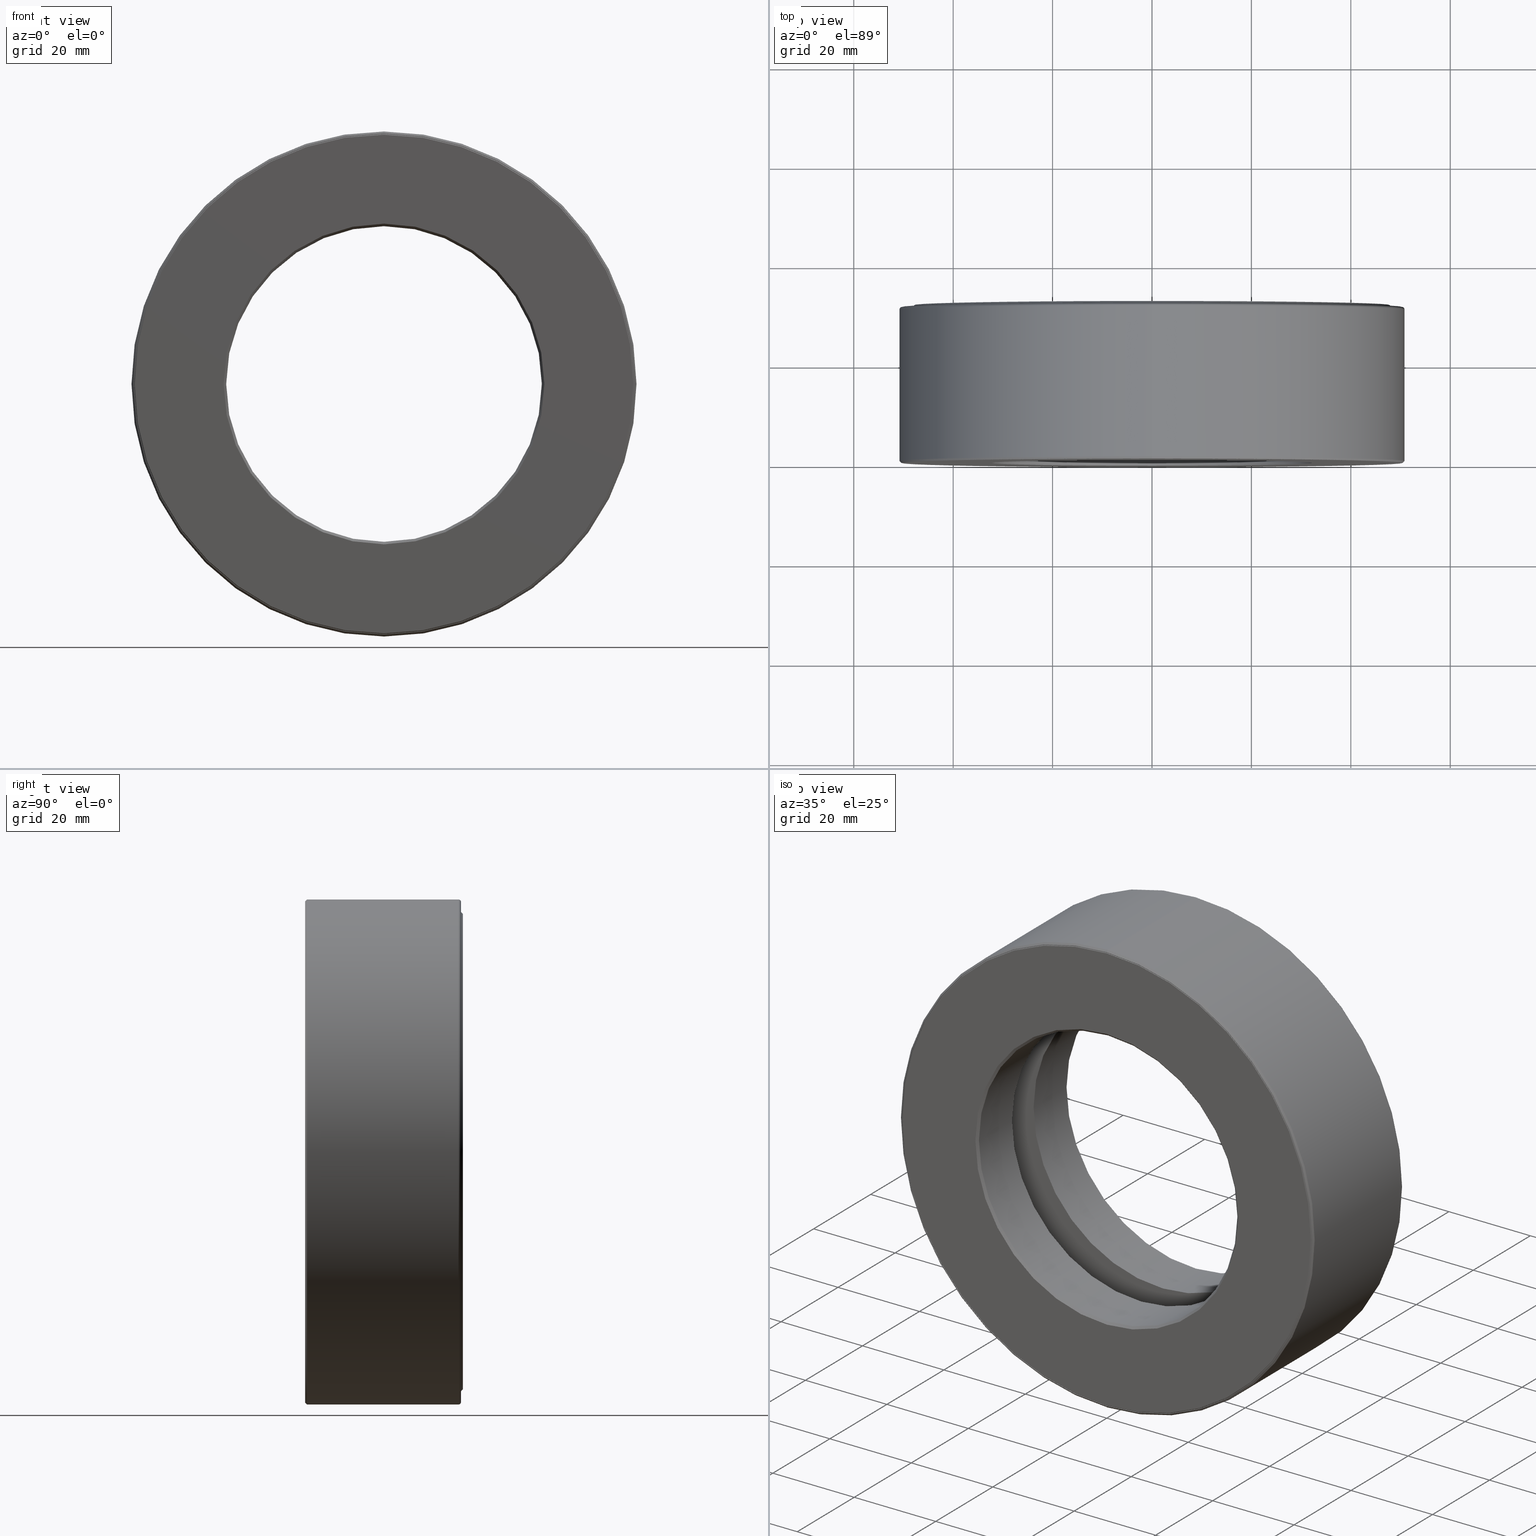
[diagram: canonical four-view strip — front | top / right | iso, engineering-drawing reading convention]
A machine part, canonical four-view strip (front | top / right | iso — engineering-drawing reading convention). The complete STEP part file that produces these views, byte-faithful:
ISO-10303-21;
HEADER;
FILE_DESCRIPTION (( 'STEP AP203' ),
    '1' );
FILE_NAME ('T-100-42.step',
    '2016-06-29T18:27:37',
    ( '' ),
    ( '' ),
    'SwSTEP 2.0',
    'SolidWorks 2016',
    '' );
FILE_SCHEMA (( 'CONFIG_CONTROL_DESIGN' ));
ENDSEC;

DATA;
#1 = FACE_OUTER_BOUND ( 'NONE', #216, .T. ) ;
#2 = AXIS2_PLACEMENT_3D ( 'NONE', #421, #27, #157 ) ;
#3 = EDGE_LOOP ( 'NONE', ( #43 ) ) ;
#4 = ORIENTED_EDGE ( 'NONE', *, *, #512, .T. ) ;
#5 = CONICAL_SURFACE ( 'NONE', #203, 1.884999999999999300, 0.7853981633974482800 ) ;
#6 = CONICAL_SURFACE ( 'NONE', #292, 1.250000000000000000, 0.7853981633974449500 ) ;
#7 = EDGE_LOOP ( 'NONE', ( #379 ) ) ;
#8 = AXIS2_PLACEMENT_3D ( 'NONE', #78, #262, #40 ) ;
#9 = DIRECTION ( 'NONE',  ( -0.0000000000000000000, 1.000000000000000000, -0.0000000000000000000 ) ) ;
#10 = SPHERICAL_SURFACE ( 'NONE', #54, 0.2500000000000000600 ) ;
#11 = EDGE_LOOP ( 'NONE', ( #188 ) ) ;
#12 = DIRECTION ( 'NONE',  ( 0.0000000000000000000, 0.0000000000000000000, 1.000000000000000000 ) ) ;
#13 = EDGE_LOOP ( 'NONE', ( #271 ) ) ;
#14 = DIRECTION ( 'NONE',  ( -0.0000000000000000000, 1.000000000000000000, -0.0000000000000000000 ) ) ;
#15 = EDGE_CURVE ( 'NONE', #489, #489, #529, .T. ) ;
#16 = PLANE ( 'NONE',  #145 ) ;
#17 = MANIFOLD_SOLID_BREP ( 'Revolve2[1]', #155 ) ;
#18 = CARTESIAN_POINT ( 'NONE',  ( 0.0000000000000000000, 1.234999999999999900, 0.0000000000000000000 ) ) ;
#19 = CARTESIAN_POINT ( 'NONE',  ( 0.0000000000000000000, 0.4749999999999999800, 0.0000000000000000000 ) ) ;
#20 = CARTESIAN_POINT ( 'NONE',  ( 4.083987789886093600E-034, -1.189847856615489700E-016, 0.0000000000000000000 ) ) ;
#21 = CIRCLE ( 'NONE', #586, 1.979999999999999500 ) ;
#22 = DIRECTION ( 'NONE',  ( 0.0000000000000000000, 0.0000000000000000000, 1.000000000000000000 ) ) ;
#23 = CIRCLE ( 'NONE', #336, 1.250000000000000000 ) ;
#24 = DIRECTION ( 'NONE',  ( -0.0000000000000000000, 1.000000000000000000, 0.0000000000000000000 ) ) ;
#25 = APPROVAL_ROLE ( '' ) ;
#26 = AXIS2_PLACEMENT_3D ( 'NONE', #296, #31, #477 ) ;
#27 = DIRECTION ( 'NONE',  ( -0.0000000000000000000, 1.000000000000000000, -0.0000000000000000000 ) ) ;
#28 = CARTESIAN_POINT ( 'NONE',  ( 0.0000000000000000000, 0.4749999999999999200, 1.920999999999999800 ) ) ;
#29 = PLANE ( 'NONE',  #559 ) ;
#30 =( CONVERSION_BASED_UNIT ( 'INCH', #453 ) LENGTH_UNIT ( ) NAMED_UNIT ( #158 ) );
#31 = DIRECTION ( 'NONE',  ( -0.0000000000000000000, 1.000000000000000000, -0.0000000000000000000 ) ) ;
#32 = ADVANCED_FACE ( 'NONE', ( #56, #539 ), #175, .F. ) ;
#33 = FACE_OUTER_BOUND ( 'NONE', #348, .T. ) ;
#34 = CARTESIAN_POINT ( 'NONE',  ( 0.0000000000000000000, 0.0000000000000000000, 0.0000000000000000000 ) ) ;
#35 = DATE_TIME_ROLE ( 'classification_date' ) ;
#36 = CARTESIAN_POINT ( 'NONE',  ( 0.0000000000000000000, 0.0000000000000000000, 0.0000000000000000000 ) ) ;
#37 = ORIENTED_EDGE ( 'NONE', *, *, #302, .F. ) ;
#38 = EDGE_LOOP ( 'NONE', ( #353 ) ) ;
#39 = DIRECTION ( 'NONE',  ( 0.0000000000000000000, -1.000000000000000000, 0.0000000000000000000 ) ) ;
#40 = DIRECTION ( 'NONE',  ( 0.0000000000000000000, 0.0000000000000000000, 1.000000000000000000 ) ) ;
#41 = SPHERICAL_SURFACE ( 'NONE', #521, 0.2500000000000000600 ) ;
#42 = EDGE_LOOP ( 'NONE', ( #52 ) ) ;
#43 = ORIENTED_EDGE ( 'NONE', *, *, #409, .T. ) ;
#44 = DIRECTION ( 'NONE',  ( 0.0000000000000000000, 0.0000000000000000000, 1.000000000000000000 ) ) ;
#45 = AXIS2_PLACEMENT_3D ( 'NONE', #233, #9, #461 ) ;
#46 = AXIS2_PLACEMENT_3D ( 'NONE', #36, #349, #82 ) ;
#47 = VERTEX_POINT ( 'NONE', #125 ) ;
#48 = CIRCLE ( 'NONE', #601, 1.884999999999999300 ) ;
#49 = EDGE_LOOP ( 'NONE', ( #169 ) ) ;
#50 = AXIS2_PLACEMENT_3D ( 'NONE', #334, #192, #57 ) ;
#51 = VERTEX_POINT ( 'NONE', #73 ) ;
#52 = ORIENTED_EDGE ( 'NONE', *, *, #362, .T. ) ;
#53 = LOCAL_TIME ( 14, 27, 37.00000000000000000, #327 ) ;
#54 = AXIS2_PLACEMENT_3D ( 'NONE', #538, #44, #351 ) ;
#55 = FACE_OUTER_BOUND ( 'NONE', #491, .T. ) ;
#56 = FACE_OUTER_BOUND ( 'NONE', #237, .T. ) ;
#57 = DIRECTION ( 'NONE',  ( 0.0000000000000000000, 0.0000000000000000000, 1.000000000000000000 ) ) ;
#58 = PERSON_AND_ORGANIZATION ( #131, #359 ) ;
#59 = CARTESIAN_POINT ( 'NONE',  ( 0.0000000000000000000, -1.024442997624098700E-016, 0.0000000000000000000 ) ) ;
#60 = DIRECTION ( 'NONE',  ( -0.0000000000000000000, 1.000000000000000000, -0.0000000000000000000 ) ) ;
#61 = CARTESIAN_POINT ( 'NONE',  ( 0.0000000000000000000, 1.234999999999999900, 0.0000000000000000000 ) ) ;
#62 = ORIENTED_EDGE ( 'NONE', *, *, #229, .F. ) ;
#63 = DIRECTION ( 'NONE',  ( 0.0000000000000000000, 0.0000000000000000000, 1.000000000000000000 ) ) ;
#64 = CARTESIAN_POINT ( 'NONE',  ( 0.0000000000000000000, -1.365923996832131600E-016, 0.0000000000000000000 ) ) ;
#65 = CLOSED_SHELL ( 'NONE', ( #434 ) ) ;
#66 = DIRECTION ( 'NONE',  ( -0.0000000000000000000, 1.000000000000000000, -0.0000000000000000000 ) ) ;
#67 = DIRECTION ( 'NONE',  ( 0.0000000000000000000, -1.000000000000000000, 0.0000000000000000000 ) ) ;
#68 = COORDINATED_UNIVERSAL_TIME_OFFSET ( 5, 0, .BEHIND. ) ;
#69 = DIRECTION ( 'NONE',  ( 1.000000000000000000, 0.0000000000000000000, 0.0000000000000000000 ) ) ;
#70 = CIRCLE ( 'NONE', #232, 1.250000000000000000 ) ;
#71 = FACE_OUTER_BOUND ( 'NONE', #381, .T. ) ;
#72 = EDGE_LOOP ( 'NONE', ( #224 ) ) ;
#73 = CARTESIAN_POINT ( 'NONE',  ( 0.0000000000000000000, 1.250000000000000200, 1.270000000000000500 ) ) ;
#74 = AXIS2_PLACEMENT_3D ( 'NONE', #418, #558, #273 ) ;
#75 = CARTESIAN_POINT ( 'NONE',  ( 0.0000000000000000000, 0.7749999999999998000, 1.250000000000000000 ) ) ;
#76 = DIRECTION ( 'NONE',  ( 0.0000000000000000000, 0.0000000000000000000, 1.000000000000000000 ) ) ;
#77 = ADVANCED_FACE ( 'NONE', ( #244, #371 ), #311, .F. ) ;
#78 = CARTESIAN_POINT ( 'NONE',  ( 0.0000000000000000000, -1.022578958537098800E-016, 0.0000000000000000000 ) ) ;
#79 = PRODUCT_RELATED_PRODUCT_CATEGORY ( 'detail', '', ( #540 ) ) ;
#80 = EDGE_CURVE ( 'NONE', #443, #443, #346, .T. ) ;
#81 = FACE_OUTER_BOUND ( 'NONE', #99, .T. ) ;
#82 = DIRECTION ( 'NONE',  ( 0.0000000000000000000, 0.0000000000000000000, 1.000000000000000000 ) ) ;
#83 = ORIENTED_EDGE ( 'NONE', *, *, #95, .F. ) ;
#84 = EDGE_LOOP ( 'NONE', ( #437 ) ) ;
#85 = DIRECTION ( 'NONE',  ( -0.0000000000000000000, 1.000000000000000000, -0.0000000000000000000 ) ) ;
#86 = COORDINATED_UNIVERSAL_TIME_OFFSET ( 5, 0, .BEHIND. ) ;
#87 = DIRECTION ( 'NONE',  ( -0.0000000000000000000, 1.000000000000000000, -0.0000000000000000000 ) ) ;
#88 = AXIS2_PLACEMENT_3D ( 'NONE', #179, #221, #542 ) ;
#89 = DIRECTION ( 'NONE',  ( 0.0000000000000000000, 0.0000000000000000000, 1.000000000000000000 ) ) ;
#90 = VERTEX_POINT ( 'NONE', #166 ) ;
#91 = SPHERICAL_SURFACE ( 'NONE', #304, 0.2500000000000000600 ) ;
#92 = ADVANCED_FACE ( 'NONE', ( #528, #236 ), #118, .T. ) ;
#93 = EDGE_LOOP ( 'NONE', ( #496 ) ) ;
#94 = PERSON_AND_ORGANIZATION ( #131, #359 ) ;
#95 = EDGE_CURVE ( 'NONE', #283, #283, #133, .T. ) ;
#96 = AXIS2_PLACEMENT_3D ( 'NONE', #64, #242, #568 ) ;
#97 = CIRCLE ( 'NONE', #398, 1.250000000000000000 ) ;
#98 = MANIFOLD_SOLID_BREP ( 'Revolve3', #450 ) ;
#99 = EDGE_LOOP ( 'NONE', ( #111 ) ) ;
#100 = VERTEX_POINT ( 'NONE', #211 ) ;
#101 = CC_DESIGN_PERSON_AND_ORGANIZATION_ASSIGNMENT ( #357, #531, ( #490 ) ) ;
#102 = DESIGN_CONTEXT ( 'detailed design', #429, 'design' ) ;
#103 = CIRCLE ( 'NONE', #505, 1.919999999999999900 ) ;
#104 = ORIENTED_EDGE ( 'NONE', *, *, #416, .T. ) ;
#105 = DIRECTION ( 'NONE',  ( 0.0000000000000000000, 0.0000000000000000000, 1.000000000000000000 ) ) ;
#106 = APPROVAL_DATE_TIME ( #523, #225 ) ;
#107 = DIRECTION ( 'NONE',  ( -0.0000000000000000000, 1.000000000000000000, -0.0000000000000000000 ) ) ;
#108 = CIRCLE ( 'NONE', #457, 1.920999999999999800 ) ;
#109 = DIRECTION ( 'NONE',  ( 0.0000000000000000000, 0.0000000000000000000, 1.000000000000000000 ) ) ;
#110 = EDGE_LOOP ( 'NONE', ( #207 ) ) ;
#111 = ORIENTED_EDGE ( 'NONE', *, *, #382, .F. ) ;
#112 = DIRECTION ( 'NONE',  ( -0.0000000000000000000, 1.000000000000000000, -0.0000000000000000000 ) ) ;
#113 = AXIS2_PLACEMENT_3D ( 'NONE', #280, #414, #367 ) ;
#114 = APPROVAL_DATE_TIME ( #557, #249 ) ;
#115 = CARTESIAN_POINT ( 'NONE',  ( 0.0000000000000000000, 1.229999999999999800, 0.0000000000000000000 ) ) ;
#116 = DIRECTION ( 'NONE',  ( 0.0000000000000000000, -0.0000000000000000000, -1.000000000000000000 ) ) ;
#117 = VERTEX_POINT ( 'NONE', #172 ) ;
#118 = CONICAL_SURFACE ( 'NONE', #50, 1.985000000000000100, 0.7853981633974311800 ) ;
#119 = AXIS2_PLACEMENT_3D ( 'NONE', #19, #154, #338 ) ;
#120 = EDGE_LOOP ( 'NONE', ( #407 ) ) ;
#121 = PERSON_AND_ORGANIZATION_ROLE ( 'design_owner' ) ;
#122 = DIRECTION ( 'NONE',  ( 0.0000000000000000000, 0.0000000000000000000, 1.000000000000000000 ) ) ;
#123 = APPROVAL_ROLE ( '' ) ;
#124 = CARTESIAN_POINT ( 'NONE',  ( 1.061356477083622700E-033, -1.023510978080598700E-016, 0.0000000000000000000 ) ) ;
#125 = CARTESIAN_POINT ( 'NONE',  ( 0.0000000000000000000, 0.4749999999999999800, 1.520999999999999700 ) ) ;
#126 = DIRECTION ( 'NONE',  ( -0.0000000000000000000, 1.000000000000000000, 0.0000000000000000000 ) ) ;
#127 = FACE_BOUND ( 'NONE', #471, .T. ) ;
#128 = CLOSED_SHELL ( 'NONE', ( #316 ) ) ;
#129 = ORIENTED_EDGE ( 'NONE', *, *, #565, .T. ) ;
#130 = DIRECTION ( 'NONE',  ( -1.000000000000000000, 0.0000000000000000000, 1.047444401652940800E-014 ) ) ;
#131 = PERSON ( 'UNSPECIFIED', 'UNSPECIFIED', 'UNSPECIFIED', ('UNSPECIFIED'), ('UNSPECIFIED'), ('UNSPECIFIED') ) ;
#132 = FACE_OUTER_BOUND ( 'NONE', #319, .T. ) ;
#133 = CIRCLE ( 'NONE', #45, 1.972999999999999400 ) ;
#134 = EDGE_LOOP ( 'NONE', ( #247 ) ) ;
#135 = DIRECTION ( 'NONE',  ( -0.0000000000000000000, 1.000000000000000000, -0.0000000000000000000 ) ) ;
#136 = ADVANCED_FACE ( 'NONE', ( #604, #459 ), #326, .T. ) ;
#137 = AXIS2_PLACEMENT_3D ( 'NONE', #467, #67, #199 ) ;
#138 = VERTEX_POINT ( 'NONE', #570 ) ;
#139 = CYLINDRICAL_SURFACE ( 'NONE', #46, 1.999999999999999800 ) ;
#140 = CLOSED_SHELL ( 'NONE', ( #136, #385, #358, #300, #209, #259, #589, #544 ) ) ;
#141 = ORIENTED_EDGE ( 'NONE', *, *, #447, .F. ) ;
#142 = ADVANCED_FACE ( 'NONE', ( #71, #405 ), #525, .F. ) ;
#143 = CONICAL_SURFACE ( 'NONE', #410, 1.249999999999999800, 0.7853981633974482800 ) ;
#144 = EDGE_LOOP ( 'NONE', ( #325 ) ) ;
#145 = AXIS2_PLACEMENT_3D ( 'NONE', #61, #571, #116 ) ;
#146 = COORDINATED_UNIVERSAL_TIME_OFFSET ( 5, 0, .BEHIND. ) ;
#147 = CARTESIAN_POINT ( 'NONE',  ( -2.035752110663290400E-015, 0.7749999999999998000, 0.0000000000000000000 ) ) ;
#148 = FACE_OUTER_BOUND ( 'NONE', #285, .T. ) ;
#149 = ORIENTED_EDGE ( 'NONE', *, *, #80, .T. ) ;
#150 = ORIENTED_EDGE ( 'NONE', *, *, #472, .T. ) ;
#151 = AXIS2_PLACEMENT_3D ( 'NONE', #594, #126, #105 ) ;
#152 = CARTESIAN_POINT ( 'NONE',  ( 0.0000000000000000000, 1.214999999999999600, 0.0000000000000000000 ) ) ;
#153 = CIRCLE ( 'NONE', #167, 1.980000000000000000 ) ;
#154 = DIRECTION ( 'NONE',  ( -0.0000000000000000000, 1.000000000000000000, -0.0000000000000000000 ) ) ;
#155 = CLOSED_SHELL ( 'NONE', ( #32, #402, #170, #180, #533, #493, #314, #343, #92, #268, #77, #253, #142, #498, #431, #583 ) ) ;
#156 = APPLICATION_CONTEXT ( 'configuration controlled 3d designs of mechanical parts and assemblies' ) ;
#157 = DIRECTION ( 'NONE',  ( 0.0000000000000000000, 0.0000000000000000000, 1.000000000000000000 ) ) ;
#158 = DIMENSIONAL_EXPONENTS ( 1.000000000000000000, 0.0000000000000000000, 0.0000000000000000000, 0.0000000000000000000, 0.0000000000000000000, 0.0000000000000000000, 0.0000000000000000000 ) ;
#159 = MANIFOLD_SOLID_BREP ( 'BALLS[1]', #128 ) ;
#160 = AXIS2_PLACEMENT_3D ( 'NONE', #147, #298, #210 ) ;
#161 =( NAMED_UNIT ( * ) PLANE_ANGLE_UNIT ( ) SI_UNIT ( $, .RADIAN. ) );
#162 = CARTESIAN_POINT ( 'NONE',  ( 0.0000000000000000000, 1.214999999999999600, 0.0000000000000000000 ) ) ;
#163 = FACE_BOUND ( 'NONE', #555, .T. ) ;
#164 = CIRCLE ( 'NONE', #372, 1.974999999999999900 ) ;
#165 = CARTESIAN_POINT ( 'NONE',  ( 0.0000000000000000000, -1.013771716398847600E-016, 0.0000000000000000000 ) ) ;
#166 = CARTESIAN_POINT ( 'NONE',  ( 0.0000000000000000000, -1.022578958537098800E-016, 1.979999999999999500 ) ) ;
#167 = AXIS2_PLACEMENT_3D ( 'NONE', #18, #518, #241 ) ;
#168 = DIRECTION ( 'NONE',  ( -0.0000000000000000000, 1.000000000000000000, -0.0000000000000000000 ) ) ;
#169 = ORIENTED_EDGE ( 'NONE', *, *, #484, .T. ) ;
#170 = ADVANCED_FACE ( 'NONE', ( #223, #454 ), #206, .F. ) ;
#171 = CARTESIAN_POINT ( 'NONE',  ( 3.906240212342812500E-016, 0.7749999999999998000, 0.0000000000000000000 ) ) ;
#172 = CARTESIAN_POINT ( 'NONE',  ( 0.0000000000000000000, 1.214999999999999600, 2.000000000000000000 ) ) ;
#173 = DIRECTION ( 'NONE',  ( 0.0000000000000000000, 0.0000000000000000000, 1.000000000000000000 ) ) ;
#174 = VERTEX_POINT ( 'NONE', #212 ) ;
#175 = TOROIDAL_SURFACE ( 'NONE', #113, 1.720999999999999900, 0.2499999999999999200 ) ;
#176 = SECURITY_CLASSIFICATION ( '', '', #254 ) ;
#177 = PLANE ( 'NONE',  #433 ) ;
#178 = APPROVAL_PERSON_ORGANIZATION ( #534, #225, #25 ) ;
#179 = CARTESIAN_POINT ( 'NONE',  ( 0.0000000000000000000, 0.02000000000000019800, 0.0000000000000000000 ) ) ;
#180 = ADVANCED_FACE ( 'NONE', ( #193, #448 ), #202, .F. ) ;
#181 = AXIS2_PLACEMENT_3D ( 'NONE', #329, #60, #511 ) ;
#182 = CARTESIAN_POINT ( 'NONE',  ( 5.498422868603908500E-016, 0.4749999999999999800, 0.0000000000000000000 ) ) ;
#183 = FACE_OUTER_BOUND ( 'NONE', #393, .T. ) ;
#184 = SPHERICAL_SURFACE ( 'NONE', #419, 0.2500000000000000600 ) ;
#185 = ORIENTED_EDGE ( 'NONE', *, *, #362, .F. ) ;
#186 = LOCAL_TIME ( 14, 27, 37.00000000000000000, #68 ) ;
#187 = VERTEX_POINT ( 'NONE', #456 ) ;
#188 = ORIENTED_EDGE ( 'NONE', *, *, #552, .T. ) ;
#189 = ORIENTED_EDGE ( 'NONE', *, *, #499, .F. ) ;
#190 = APPROVAL_DATE_TIME ( #588, #451 ) ;
#191 = CC_DESIGN_APPROVAL ( #249, ( #490 ) ) ;
#192 = DIRECTION ( 'NONE',  ( -0.0000000000000000000, 1.000000000000000000, -0.0000000000000000000 ) ) ;
#193 = FACE_OUTER_BOUND ( 'NONE', #554, .T. ) ;
#194 = EDGE_LOOP ( 'NONE', ( #297 ) ) ;
#195 =( GEOMETRIC_REPRESENTATION_CONTEXT ( 3 ) GLOBAL_UNCERTAINTY_ASSIGNED_CONTEXT ( ( #605 ) ) GLOBAL_UNIT_ASSIGNED_CONTEXT ( ( #30, #161, #390 ) ) REPRESENTATION_CONTEXT ( 'NONE', 'WORKASPACE' ) );
#196 = CARTESIAN_POINT ( 'NONE',  ( 0.0000000000000000000, 1.214999999999999600, 0.0000000000000000000 ) ) ;
#197 = CIRCLE ( 'NONE', #88, 1.249999999999999800 ) ;
#198 = ORIENTED_EDGE ( 'NONE', *, *, #282, .F. ) ;
#199 = DIRECTION ( 'NONE',  ( 0.0000000000000000000, -0.0000000000000000000, -1.000000000000000000 ) ) ;
#200 = CARTESIAN_POINT ( 'NONE',  ( 0.0000000000000000000, 0.7749999999999999100, 0.0000000000000000000 ) ) ;
#201 = DATE_AND_TIME ( #541, #408 ) ;
#202 = PLANE ( 'NONE',  #324 ) ;
#203 = AXIS2_PLACEMENT_3D ( 'NONE', #415, #239, #287 ) ;
#204 = VERTEX_POINT ( 'NONE', #590 ) ;
#205 = CARTESIAN_POINT ( 'NONE',  ( 0.0000000000000000000, 0.0000000000000000000, 0.0000000000000000000 ) ) ;
#206 = CYLINDRICAL_SURFACE ( 'NONE', #356, 1.979999999999999500 ) ;
#207 = ORIENTED_EDGE ( 'NONE', *, *, #484, .F. ) ;
#208 = CARTESIAN_POINT ( 'NONE',  ( 0.0000000000000000000, 0.005000000000000393000, 1.979999999999999500 ) ) ;
#209 = ADVANCED_FACE ( 'NONE', ( #392, #548 ), #6, .F. ) ;
#210 = DIRECTION ( 'NONE',  ( 0.0000000000000000000, -0.0000000000000000000, -1.000000000000000000 ) ) ;
#211 = CARTESIAN_POINT ( 'NONE',  ( 0.0000000000000000000, 0.4749999999999999800, 1.979999999999999500 ) ) ;
#212 = CARTESIAN_POINT ( 'NONE',  ( 0.0000000000000000000, 0.7749999999999999100, 1.920999999999999800 ) ) ;
#213 = FACE_BOUND ( 'NONE', #550, .T. ) ;
#214 = AXIS2_PLACEMENT_3D ( 'NONE', #380, #384, #69 ) ;
#215 = DIRECTION ( 'NONE',  ( -0.0000000000000000000, 1.000000000000000000, 0.0000000000000000000 ) ) ;
#216 = EDGE_LOOP ( 'NONE', ( #141 ) ) ;
#217 = EDGE_LOOP ( 'NONE', ( #149 ) ) ;
#218 = CARTESIAN_POINT ( 'NONE',  ( 0.0000000000000000000, 0.0000000000000000000, 0.0000000000000000000 ) ) ;
#219 = CALENDAR_DATE ( 2016, 29, 6 ) ;
#220 = DIRECTION ( 'NONE',  ( 0.0000000000000000000, 0.0000000000000000000, 1.000000000000000000 ) ) ;
#221 = DIRECTION ( 'NONE',  ( -0.0000000000000000000, 1.000000000000000000, -0.0000000000000000000 ) ) ;
#222 = CYLINDRICAL_SURFACE ( 'NONE', #2, 1.919999999999999900 ) ;
#223 = FACE_OUTER_BOUND ( 'NONE', #495, .T. ) ;
#224 = ORIENTED_EDGE ( 'NONE', *, *, #597, .F. ) ;
#225 = APPROVAL ( #575, 'UNSPECIFIED' ) ;
#226 = CIRCLE ( 'NONE', #255, 1.920999999999999800 ) ;
#227 = ORIENTED_EDGE ( 'NONE', *, *, #472, .F. ) ;
#228 = ORIENTED_EDGE ( 'NONE', *, *, #543, .F. ) ;
#229 = EDGE_CURVE ( 'NONE', #187, #187, #412, .T. ) ;
#230 = FACE_OUTER_BOUND ( 'NONE', #42, .T. ) ;
#231 = CYLINDRICAL_SURFACE ( 'NONE', #549, 1.250000000000000000 ) ;
#232 = AXIS2_PLACEMENT_3D ( 'NONE', #284, #573, #22 ) ;
#233 = CARTESIAN_POINT ( 'NONE',  ( 0.0000000000000000000, 1.162000000000000100, 0.0000000000000000000 ) ) ;
#234 = CC_DESIGN_APPROVAL ( #225, ( #176 ) ) ;
#235 = PERSON_AND_ORGANIZATION ( #131, #359 ) ;
#236 = FACE_BOUND ( 'NONE', #217, .T. ) ;
#237 = EDGE_LOOP ( 'NONE', ( #189 ) ) ;
#238 = ORIENTED_EDGE ( 'NONE', *, *, #409, .F. ) ;
#239 = DIRECTION ( 'NONE',  ( 0.0000000000000000000, -1.000000000000000000, 0.0000000000000000000 ) ) ;
#240 = DIRECTION ( 'NONE',  ( -0.0000000000000000000, 1.000000000000000000, -0.0000000000000000000 ) ) ;
#241 = DIRECTION ( 'NONE',  ( 0.0000000000000000000, 0.0000000000000000000, 1.000000000000000000 ) ) ;
#242 = DIRECTION ( 'NONE',  ( -0.0000000000000000000, 1.000000000000000000, -0.0000000000000000000 ) ) ;
#243 = FACE_BOUND ( 'NONE', #502, .T. ) ;
#244 = FACE_OUTER_BOUND ( 'NONE', #7, .T. ) ;
#245 = PERSON_AND_ORGANIZATION_ROLE ( 'classification_officer' ) ;
#246 = DIRECTION ( 'NONE',  ( 1.000000000000000000, 0.0000000000000000000, -6.982962677686269100E-015 ) ) ;
#247 = ORIENTED_EDGE ( 'NONE', *, *, #229, .T. ) ;
#248 = DIRECTION ( 'NONE',  ( 0.0000000000000000000, 0.0000000000000000000, 1.000000000000000000 ) ) ;
#249 = APPROVAL ( #485, 'UNSPECIFIED' ) ;
#250 = COORDINATED_UNIVERSAL_TIME_OFFSET ( 5, 0, .BEHIND. ) ;
#251 = MECHANICAL_CONTEXT ( 'NONE', #156, 'mechanical' ) ;
#252 = DIRECTION ( 'NONE',  ( -0.0000000000000000000, 1.000000000000000000, -0.0000000000000000000 ) ) ;
#253 = ADVANCED_FACE ( 'NONE', ( #55, #213 ), #270, .T. ) ;
#254 = SECURITY_CLASSIFICATION_LEVEL ( 'unclassified' ) ;
#255 = AXIS2_PLACEMENT_3D ( 'NONE', #200, #522, #519 ) ;
#256 = DIRECTION ( 'NONE',  ( 1.000000000000000000, 0.0000000000000000000, -3.491481338843134500E-015 ) ) ;
#257 = FACE_BOUND ( 'NONE', #93, .T. ) ;
#258 = ORIENTED_EDGE ( 'NONE', *, *, #565, .F. ) ;
#259 = ADVANCED_FACE ( 'NONE', ( #567, #332 ), #584, .T. ) ;
#260 = ORIENTED_EDGE ( 'NONE', *, *, #282, .T. ) ;
#261 = CARTESIAN_POINT ( 'NONE',  ( 0.0000000000000000000, 1.234999999999999900, 1.980000000000000000 ) ) ;
#262 = DIRECTION ( 'NONE',  ( -0.0000000000000000000, 1.000000000000000000, -0.0000000000000000000 ) ) ;
#263 = DIRECTION ( 'NONE',  ( -0.0000000000000000000, 1.000000000000000000, -0.0000000000000000000 ) ) ;
#264 = CIRCLE ( 'NONE', #119, 1.520999999999999700 ) ;
#265 = ORIENTED_EDGE ( 'NONE', *, *, #465, .F. ) ;
#266 = ORIENTED_EDGE ( 'NONE', *, *, #499, .T. ) ;
#267 = AXIS2_PLACEMENT_3D ( 'NONE', #152, #580, #303 ) ;
#268 = ADVANCED_FACE ( 'NONE', ( #294, #257 ), #29, .F. ) ;
#269 = CIRCLE ( 'NONE', #181, 1.979999999999999500 ) ;
#270 = CONICAL_SURFACE ( 'NONE', #515, 1.974999999999999900, 0.7853981633973798900 ) ;
#271 = ORIENTED_EDGE ( 'NONE', *, *, #597, .T. ) ;
#272 = EDGE_LOOP ( 'NONE', ( #185 ) ) ;
#273 = DIRECTION ( 'NONE',  ( 0.0000000000000000000, 0.0000000000000000000, 1.000000000000000000 ) ) ;
#274 = EDGE_CURVE ( 'NONE', #138, #138, #48, .T. ) ;
#275 = VERTEX_POINT ( 'NONE', #75 ) ;
#276 = FACE_BOUND ( 'NONE', #194, .T. ) ;
#277 = EDGE_LOOP ( 'NONE', ( #228 ) ) ;
#278 = CARTESIAN_POINT ( 'NONE',  ( 0.0000000000000000000, 0.4749999999999999800, 0.0000000000000000000 ) ) ;
#279 = AXIS2_PLACEMENT_3D ( 'NONE', #196, #240, #576 ) ;
#280 = CARTESIAN_POINT ( 'NONE',  ( 0.0000000000000000000, 0.6249999999999997800, 0.0000000000000000000 ) ) ;
#281 = DIRECTION ( 'NONE',  ( 0.0000000000000000000, -1.000000000000000000, 0.0000000000000000000 ) ) ;
#282 = EDGE_CURVE ( 'NONE', #546, #546, #164, .T. ) ;
#283 = VERTEX_POINT ( 'NONE', #376 ) ;
#284 = CARTESIAN_POINT ( 'NONE',  ( 0.0000000000000000000, 1.229999999999999800, 0.0000000000000000000 ) ) ;
#285 = EDGE_LOOP ( 'NONE', ( #150 ) ) ;
#286 = ORIENTED_EDGE ( 'NONE', *, *, #274, .T. ) ;
#287 = DIRECTION ( 'NONE',  ( 0.0000000000000000000, 0.0000000000000000000, -1.000000000000000000 ) ) ;
#288 = DIRECTION ( 'NONE',  ( 0.0000000000000000000, 0.0000000000000000000, 1.000000000000000000 ) ) ;
#289 = CC_DESIGN_DATE_AND_TIME_ASSIGNMENT ( #422, #35, ( #176 ) ) ;
#290 = LOCAL_TIME ( 14, 27, 37.00000000000000000, #86 ) ;
#291 = CARTESIAN_POINT ( 'NONE',  ( 0.0000000000000000000, -1.365923996832131600E-016, 1.270000000000000000 ) ) ;
#292 = AXIS2_PLACEMENT_3D ( 'NONE', #115, #524, #383 ) ;
#293 = FACE_OUTER_BOUND ( 'NONE', #120, .T. ) ;
#294 = FACE_OUTER_BOUND ( 'NONE', #84, .T. ) ;
#295 = APPROVAL_STATUS ( 'not_yet_approved' ) ;
#296 = CARTESIAN_POINT ( 'NONE',  ( 0.0000000000000000000, 1.214999999999999600, 0.0000000000000000000 ) ) ;
#297 = ORIENTED_EDGE ( 'NONE', *, *, #302, .T. ) ;
#298 = DIRECTION ( 'NONE',  ( 0.0000000000000000000, -1.000000000000000000, 0.0000000000000000000 ) ) ;
#299 = DATE_TIME_ROLE ( 'creation_date' ) ;
#300 = ADVANCED_FACE ( 'NONE', ( #444, #366 ), #339, .F. ) ;
#301 = LOCAL_TIME ( 14, 27, 37.00000000000000000, #146 ) ;
#302 = EDGE_CURVE ( 'NONE', #275, #275, #97, .T. ) ;
#303 = DIRECTION ( 'NONE',  ( 0.0000000000000000000, 0.0000000000000000000, 1.000000000000000000 ) ) ;
#304 = AXIS2_PLACEMENT_3D ( 'NONE', #481, #130, #587 ) ;
#305 = CIRCLE ( 'NONE', #96, 1.270000000000000000 ) ;
#306 = ORIENTED_EDGE ( 'NONE', *, *, #552, .F. ) ;
#307 = EDGE_LOOP ( 'NONE', ( #363 ) ) ;
#308 = CARTESIAN_POINT ( 'NONE',  ( 0.0000000000000000000, 0.7749999999999998000, 0.0000000000000000000 ) ) ;
#309 = CARTESIAN_POINT ( 'NONE',  ( 0.0000000000000000000, 0.6249999999999997800, 0.0000000000000000000 ) ) ;
#310 = VERTEX_POINT ( 'NONE', #342 ) ;
#311 = CYLINDRICAL_SURFACE ( 'NONE', #578, 1.979999999999999500 ) ;
#312 = EDGE_LOOP ( 'NONE', ( #4 ) ) ;
#313 = MANIFOLD_SOLID_BREP ( 'Revolve2[2]', #140 ) ;
#314 = ADVANCED_FACE ( 'NONE', ( #436, #148 ), #317, .T. ) ;
#315 = AXIS2_PLACEMENT_3D ( 'NONE', #486, #591, #598 ) ;
#316 = ADVANCED_FACE ( 'NONE', ( ), #184, .T. ) ;
#317 = TOROIDAL_SURFACE ( 'NONE', #26, 1.980000000000000000, 0.02000000000000005900 ) ;
#318 = EDGE_LOOP ( 'NONE', ( #265 ) ) ;
#319 = EDGE_LOOP ( 'NONE', ( #266 ) ) ;
#320 = CALENDAR_DATE ( 2016, 29, 6 ) ;
#321 = MANIFOLD_SOLID_BREP ( 'BALLS[3]', #361 ) ;
#322 = FACE_BOUND ( 'NONE', #144, .T. ) ;
#323 = FACE_OUTER_BOUND ( 'NONE', #582, .T. ) ;
#324 = AXIS2_PLACEMENT_3D ( 'NONE', #389, #24, #122 ) ;
#325 = ORIENTED_EDGE ( 'NONE', *, *, #15, .F. ) ;
#326 = PLANE ( 'NONE',  #160 ) ;
#327 = COORDINATED_UNIVERSAL_TIME_OFFSET ( 5, 0, .BEHIND. ) ;
#328 = DIRECTION ( 'NONE',  ( -0.0000000000000000000, 1.000000000000000000, -0.0000000000000000000 ) ) ;
#329 = CARTESIAN_POINT ( 'NONE',  ( 0.0000000000000000000, 0.005000000000000393000, 0.0000000000000000000 ) ) ;
#330 = EDGE_CURVE ( 'NONE', #90, #90, #470, .T. ) ;
#331 = CARTESIAN_POINT ( 'NONE',  ( 0.0000000000000000000, 0.4750000000000002600, 0.0000000000000000000 ) ) ;
#332 = FACE_BOUND ( 'NONE', #110, .T. ) ;
#333 = EDGE_LOOP ( 'NONE', ( #430 ) ) ;
#334 = CARTESIAN_POINT ( 'NONE',  ( 0.0000000000000000000, -1.024442997624098700E-016, 0.0000000000000000000 ) ) ;
#335 = EDGE_LOOP ( 'NONE', ( #286 ) ) ;
#336 = AXIS2_PLACEMENT_3D ( 'NONE', #331, #462, #464 ) ;
#337 = DIRECTION ( 'NONE',  ( -6.982962677686269100E-015, 0.0000000000000000000, -1.000000000000000000 ) ) ;
#338 = DIRECTION ( 'NONE',  ( 0.0000000000000000000, 0.0000000000000000000, 1.000000000000000000 ) ) ;
#339 = CYLINDRICAL_SURFACE ( 'NONE', #315, 1.250000000000000000 ) ;
#340 = CARTESIAN_POINT ( 'NONE',  ( 0.0000000000000000000, 0.01499999999999984000, 1.999999999999999300 ) ) ;
#341 = EDGE_CURVE ( 'NONE', #204, #204, #103, .T. ) ;
#342 = CARTESIAN_POINT ( 'NONE',  ( 0.0000000000000000000, 0.7749999999999999100, 1.520999999999999700 ) ) ;
#343 = ADVANCED_FACE ( 'NONE', ( #323, #33 ), #139, .T. ) ;
#344 = AXIS2_PLACEMENT_3D ( 'NONE', #205, #375, #109 ) ;
#345 = DIRECTION ( 'NONE',  ( 0.0000000000000000000, 0.0000000000000000000, 1.000000000000000000 ) ) ;
#346 = CIRCLE ( 'NONE', #504, 1.985000000000000100 ) ;
#347 = DIRECTION ( 'NONE',  ( 0.0000000000000000000, -0.0000000000000000000, -1.000000000000000000 ) ) ;
#348 = EDGE_LOOP ( 'NONE', ( #373 ) ) ;
#349 = DIRECTION ( 'NONE',  ( -0.0000000000000000000, 1.000000000000000000, -0.0000000000000000000 ) ) ;
#350 = CARTESIAN_POINT ( 'NONE',  ( 0.0000000000000000000, 0.4749999999999999200, 0.0000000000000000000 ) ) ;
#351 = DIRECTION ( 'NONE',  ( -1.000000000000000000, 0.0000000000000000000, 0.0000000000000000000 ) ) ;
#352 = VERTEX_POINT ( 'NONE', #435 ) ;
#353 = ORIENTED_EDGE ( 'NONE', *, *, #341, .F. ) ;
#354 = DIRECTION ( 'NONE',  ( 0.0000000000000000000, 0.0000000000000000000, 1.000000000000000000 ) ) ;
#355 = ADVANCED_FACE ( 'NONE', ( ), #91, .T. ) ;
#356 = AXIS2_PLACEMENT_3D ( 'NONE', #34, #66, #423 ) ;
#357 = PERSON_AND_ORGANIZATION ( #131, #359 ) ;
#358 = ADVANCED_FACE ( 'NONE', ( #276, #81 ), #388, .T. ) ;
#359 = ORGANIZATION ( 'UNSPECIFIED', 'UNSPECIFIED', '' ) ;
#360 = ADVANCED_FACE ( 'NONE', ( ), #10, .T. ) ;
#361 = CLOSED_SHELL ( 'NONE', ( #355 ) ) ;
#362 = EDGE_CURVE ( 'NONE', #427, #427, #561, .T. ) ;
#363 = ORIENTED_EDGE ( 'NONE', *, *, #341, .T. ) ;
#364 = PRODUCT_DEFINITION ( 'UNKNOWN', '', #490, #102 ) ;
#365 = VERTEX_POINT ( 'NONE', #340 ) ;
#366 = FACE_OUTER_BOUND ( 'NONE', #562, .T. ) ;
#367 = DIRECTION ( 'NONE',  ( 0.0000000000000000000, 0.0000000000000000000, 1.000000000000000000 ) ) ;
#368 = SHAPE_DEFINITION_REPRESENTATION ( #516, #547 ) ;
#369 = CARTESIAN_POINT ( 'NONE',  ( 0.0000000000000000000, 1.234999999999999900, 0.0000000000000000000 ) ) ;
#370 = PLANE ( 'NONE',  #137 ) ;
#371 = FACE_OUTER_BOUND ( 'NONE', #11, .T. ) ;
#372 = AXIS2_PLACEMENT_3D ( 'NONE', #536, #535, #593 ) ;
#373 = ORIENTED_EDGE ( 'NONE', *, *, #543, .T. ) ;
#374 = EDGE_LOOP ( 'NONE', ( #460 ) ) ;
#375 = DIRECTION ( 'NONE',  ( -0.0000000000000000000, 1.000000000000000000, -0.0000000000000000000 ) ) ;
#376 = CARTESIAN_POINT ( 'NONE',  ( 0.0000000000000000000, 1.162000000000000100, 1.972999999999999400 ) ) ;
#377 = CARTESIAN_POINT ( 'NONE',  ( 0.0000000000000000000, 1.250000000000000200, 0.0000000000000000000 ) ) ;
#378 = FACE_OUTER_BOUND ( 'NONE', #318, .T. ) ;
#379 = ORIENTED_EDGE ( 'NONE', *, *, #330, .F. ) ;
#380 = CARTESIAN_POINT ( 'NONE',  ( 0.0000000000000000000, 0.0000000000000000000, 0.0000000000000000000 ) ) ;
#381 = EDGE_LOOP ( 'NONE', ( #198 ) ) ;
#382 = EDGE_CURVE ( 'NONE', #310, #310, #579, .T. ) ;
#383 = DIRECTION ( 'NONE',  ( 0.0000000000000000000, 0.0000000000000000000, 1.000000000000000000 ) ) ;
#384 = DIRECTION ( 'NONE',  ( 0.0000000000000000000, 0.0000000000000000000, 1.000000000000000000 ) ) ;
#385 = ADVANCED_FACE ( 'NONE', ( #479, #1 ), #494, .F. ) ;
#386 = APPLICATION_PROTOCOL_DEFINITION ( 'international standard', 'config_control_design', 1994, #156 ) ;
#387 = AXIS2_PLACEMENT_3D ( 'NONE', #400, #135, #354 ) ;
#388 = PLANE ( 'NONE',  #406 ) ;
#389 = CARTESIAN_POINT ( 'NONE',  ( 0.0000000000000000000, 1.214999999999999600, 0.0000000000000000000 ) ) ;
#390 =( NAMED_UNIT ( * ) SI_UNIT ( $, .STERADIAN. ) SOLID_ANGLE_UNIT ( ) );
#391 = VERTEX_POINT ( 'NONE', #208 ) ;
#392 = FACE_OUTER_BOUND ( 'NONE', #49, .T. ) ;
#393 = EDGE_LOOP ( 'NONE', ( #401 ) ) ;
#394 = CARTESIAN_POINT ( 'NONE',  ( 0.0000000000000000000, 0.7749999999999998000, 1.972999999999999600 ) ) ;
#395 = DIRECTION ( 'NONE',  ( 3.491481338843134500E-015, 0.0000000000000000000, 1.000000000000000000 ) ) ;
#396 = CC_DESIGN_SECURITY_CLASSIFICATION ( #176, ( #490 ) ) ;
#397 = DIRECTION ( 'NONE',  ( -0.0000000000000000000, 1.000000000000000000, -0.0000000000000000000 ) ) ;
#398 = AXIS2_PLACEMENT_3D ( 'NONE', #527, #168, #76 ) ;
#399 = FACE_BOUND ( 'NONE', #509, .T. ) ;
#400 = CARTESIAN_POINT ( 'NONE',  ( 0.0000000000000000000, 0.7749999999999999100, 0.0000000000000000000 ) ) ;
#401 = ORIENTED_EDGE ( 'NONE', *, *, #95, .T. ) ;
#402 = ADVANCED_FACE ( 'NONE', ( #127, #508 ), #177, .F. ) ;
#403 = VERTEX_POINT ( 'NONE', #432 ) ;
#404 = EDGE_CURVE ( 'NONE', #526, #526, #197, .T. ) ;
#405 = FACE_BOUND ( 'NONE', #445, .T. ) ;
#406 = AXIS2_PLACEMENT_3D ( 'NONE', #171, #39, #347 ) ;
#407 = ORIENTED_EDGE ( 'NONE', *, *, #15, .T. ) ;
#408 = LOCAL_TIME ( 14, 27, 37.00000000000000000, #250 ) ;
#409 = EDGE_CURVE ( 'NONE', #417, #417, #108, .T. ) ;
#410 = AXIS2_PLACEMENT_3D ( 'NONE', #474, #281, #513 ) ;
#411 = CYLINDRICAL_SURFACE ( 'NONE', #344, 1.972999999999999400 ) ;
#412 = CIRCLE ( 'NONE', #267, 1.980000000000000000 ) ;
#413 = ORIENTED_EDGE ( 'NONE', *, *, #404, .T. ) ;
#414 = DIRECTION ( 'NONE',  ( -0.0000000000000000000, 1.000000000000000000, -0.0000000000000000000 ) ) ;
#415 = CARTESIAN_POINT ( 'NONE',  ( 0.0000000000000000000, 1.250000000000000000, 0.0000000000000000000 ) ) ;
#416 = EDGE_CURVE ( 'NONE', #352, #352, #23, .T. ) ;
#417 = VERTEX_POINT ( 'NONE', #28 ) ;
#418 = CARTESIAN_POINT ( 'NONE',  ( 0.0000000000000000000, 0.01499999999999984000, 0.0000000000000000000 ) ) ;
#419 = AXIS2_PLACEMENT_3D ( 'NONE', #532, #256, #395 ) ;
#420 = ORIENTED_EDGE ( 'NONE', *, *, #274, .F. ) ;
#421 = CARTESIAN_POINT ( 'NONE',  ( 0.0000000000000000000, 0.0000000000000000000, 0.0000000000000000000 ) ) ;
#422 = DATE_AND_TIME ( #606, #290 ) ;
#423 = DIRECTION ( 'NONE',  ( 0.0000000000000000000, 0.0000000000000000000, 1.000000000000000000 ) ) ;
#424 = CARTESIAN_POINT ( 'NONE',  ( 0.0000000000000000000, 1.234999999999999900, 1.919999999999999900 ) ) ;
#425 = CC_DESIGN_DATE_AND_TIME_ASSIGNMENT ( #201, #299, ( #364 ) ) ;
#426 = DIRECTION ( 'NONE',  ( -0.0000000000000000000, 1.000000000000000000, -0.0000000000000000000 ) ) ;
#427 = VERTEX_POINT ( 'NONE', #394 ) ;
#428 = FACE_OUTER_BOUND ( 'NONE', #438, .T. ) ;
#429 = APPLICATION_CONTEXT ( 'configuration controlled 3d designs of mechanical parts and assemblies' ) ;
#430 = ORIENTED_EDGE ( 'NONE', *, *, #382, .T. ) ;
#431 = ADVANCED_FACE ( 'NONE', ( #595, #428 ), #231, .F. ) ;
#432 = CARTESIAN_POINT ( 'NONE',  ( 0.0000000000000000000, 1.229999999999999800, 1.250000000000000000 ) ) ;
#433 = AXIS2_PLACEMENT_3D ( 'NONE', #182, #603, #492 ) ;
#434 = ADVANCED_FACE ( 'NONE', ( ), #41, .T. ) ;
#435 = CARTESIAN_POINT ( 'NONE',  ( 0.0000000000000000000, 0.4750000000000002600, 1.250000000000000000 ) ) ;
#436 = FACE_OUTER_BOUND ( 'NONE', #72, .T. ) ;
#437 = ORIENTED_EDGE ( 'NONE', *, *, #80, .F. ) ;
#438 = EDGE_LOOP ( 'NONE', ( #104 ) ) ;
#439 = CARTESIAN_POINT ( 'NONE',  ( 0.0000000000000000000, 1.250000000000000000, 0.0000000000000000000 ) ) ;
#440 = MANIFOLD_SOLID_BREP ( 'BALLS[2]', #65 ) ;
#441 = CC_DESIGN_PERSON_AND_ORGANIZATION_ASSIGNMENT ( #58, #245, ( #176 ) ) ;
#442 = AXIS2_PLACEMENT_3D ( 'NONE', #369, #112, #563 ) ;
#443 = VERTEX_POINT ( 'NONE', #564 ) ;
#444 = FACE_OUTER_BOUND ( 'NONE', #312, .T. ) ;
#445 = EDGE_LOOP ( 'NONE', ( #482 ) ) ;
#446 = PERSON_AND_ORGANIZATION ( #131, #359 ) ;
#447 = EDGE_CURVE ( 'NONE', #174, #174, #226, .T. ) ;
#448 = FACE_BOUND ( 'NONE', #307, .T. ) ;
#449 = ORIENTED_EDGE ( 'NONE', *, *, #416, .F. ) ;
#450 = CLOSED_SHELL ( 'NONE', ( #360 ) ) ;
#451 = APPROVAL ( #295, 'UNSPECIFIED' ) ;
#452 = CC_DESIGN_PERSON_AND_ORGANIZATION_ASSIGNMENT ( #235, #121, ( #540 ) ) ;
#453 = LENGTH_MEASURE_WITH_UNIT ( LENGTH_MEASURE( 0.02539999999999999900 ), #592 );
#454 = FACE_OUTER_BOUND ( 'NONE', #134, .T. ) ;
#455 = DIRECTION ( 'NONE',  ( 0.0000000000000000000, 0.0000000000000000000, 1.000000000000000000 ) ) ;
#456 = CARTESIAN_POINT ( 'NONE',  ( 0.0000000000000000000, 1.214999999999999600, 1.980000000000000000 ) ) ;
#457 = AXIS2_PLACEMENT_3D ( 'NONE', #350, #85, #220 ) ;
#458 = PERSON_AND_ORGANIZATION ( #131, #359 ) ;
#459 = FACE_OUTER_BOUND ( 'NONE', #272, .T. ) ;
#460 = ORIENTED_EDGE ( 'NONE', *, *, #404, .F. ) ;
#461 = DIRECTION ( 'NONE',  ( 0.0000000000000000000, 0.0000000000000000000, 1.000000000000000000 ) ) ;
#462 = DIRECTION ( 'NONE',  ( -0.0000000000000000000, 1.000000000000000000, -0.0000000000000000000 ) ) ;
#463 = ORIENTED_EDGE ( 'NONE', *, *, #512, .F. ) ;
#464 = DIRECTION ( 'NONE',  ( 0.0000000000000000000, 0.0000000000000000000, 1.000000000000000000 ) ) ;
#465 = EDGE_CURVE ( 'NONE', #553, #553, #305, .T. ) ;
#466 = DIRECTION ( 'NONE',  ( -0.0000000000000000000, 1.000000000000000000, 0.0000000000000000000 ) ) ;
#467 = CARTESIAN_POINT ( 'NONE',  ( -4.788294453839597400E-016, 0.4750000000000001400, 0.0000000000000000000 ) ) ;
#468 = CIRCLE ( 'NONE', #566, 1.270000000000000500 ) ;
#469 = CC_DESIGN_PERSON_AND_ORGANIZATION_ASSIGNMENT ( #94, #520, ( #490 ) ) ;
#470 = CIRCLE ( 'NONE', #8, 1.979999999999999500 ) ;
#471 = EDGE_LOOP ( 'NONE', ( #238 ) ) ;
#472 = EDGE_CURVE ( 'NONE', #117, #117, #506, .T. ) ;
#473 = PERSON_AND_ORGANIZATION_ROLE ( 'creator' ) ;
#474 = CARTESIAN_POINT ( 'NONE',  ( 0.0000000000000000000, 0.02000000000000019800, 0.0000000000000000000 ) ) ;
#475 = AXIS2_PLACEMENT_3D ( 'NONE', #309, #87, #89 ) ;
#476 = APPROVAL_ROLE ( '' ) ;
#477 = DIRECTION ( 'NONE',  ( 0.0000000000000000000, 0.0000000000000000000, 1.000000000000000000 ) ) ;
#478 = APPROVAL_PERSON_ORGANIZATION ( #458, #451, #123 ) ;
#479 = FACE_OUTER_BOUND ( 'NONE', #333, .T. ) ;
#480 = CARTESIAN_POINT ( 'NONE',  ( 0.0000000000000000000, 0.02000000000000019800, 1.249999999999999800 ) ) ;
#481 = CARTESIAN_POINT ( 'NONE',  ( -1.802651815244709400E-014, 0.6249999999999997800, -1.720999999999999400 ) ) ;
#482 = ORIENTED_EDGE ( 'NONE', *, *, #465, .T. ) ;
#483 = ORIENTED_EDGE ( 'NONE', *, *, #447, .T. ) ;
#484 = EDGE_CURVE ( 'NONE', #51, #51, #468, .T. ) ;
#485 = APPROVAL_STATUS ( 'not_yet_approved' ) ;
#486 = CARTESIAN_POINT ( 'NONE',  ( 0.0000000000000000000, 0.0000000000000000000, 0.0000000000000000000 ) ) ;
#487 = CC_DESIGN_APPROVAL ( #451, ( #364 ) ) ;
#488 = DIRECTION ( 'NONE',  ( -0.0000000000000000000, 1.000000000000000000, -0.0000000000000000000 ) ) ;
#489 = VERTEX_POINT ( 'NONE', #424 ) ;
#490 = PRODUCT_DEFINITION_FORMATION_WITH_SPECIFIED_SOURCE ( 'ANY', '', #540, .NOT_KNOWN. ) ;
#491 = EDGE_LOOP ( 'NONE', ( #306 ) ) ;
#492 = DIRECTION ( 'NONE',  ( 0.0000000000000000000, -0.0000000000000000000, -1.000000000000000000 ) ) ;
#493 = ADVANCED_FACE ( 'NONE', ( #322, #500 ), #16, .F. ) ;
#494 = TOROIDAL_SURFACE ( 'NONE', #475, 1.720999999999999900, 0.2500000000000001700 ) ;
#495 = EDGE_LOOP ( 'NONE', ( #258 ) ) ;
#496 = ORIENTED_EDGE ( 'NONE', *, *, #330, .T. ) ;
#497 = AXIS2_PLACEMENT_3D ( 'NONE', #20, #466, #530 ) ;
#498 = ADVANCED_FACE ( 'NONE', ( #378, #399 ), #143, .F. ) ;
#499 = EDGE_CURVE ( 'NONE', #47, #47, #264, .T. ) ;
#500 = FACE_OUTER_BOUND ( 'NONE', #13, .T. ) ;
#501 = EDGE_LOOP ( 'NONE', ( #463 ) ) ;
#502 = EDGE_LOOP ( 'NONE', ( #449 ) ) ;
#503 = CALENDAR_DATE ( 2016, 29, 6 ) ;
#504 = AXIS2_PLACEMENT_3D ( 'NONE', #59, #14, #455 ) ;
#505 = AXIS2_PLACEMENT_3D ( 'NONE', #162, #397, #581 ) ;
#506 = CIRCLE ( 'NONE', #279, 2.000000000000000000 ) ;
#507 = CARTESIAN_POINT ( 'NONE',  ( 0.0000000000000000000, 0.0000000000000000000, 0.0000000000000000000 ) ) ;
#508 = FACE_OUTER_BOUND ( 'NONE', #596, .T. ) ;
#509 = EDGE_LOOP ( 'NONE', ( #413 ) ) ;
#510 = CARTESIAN_POINT ( 'NONE',  ( 0.0000000000000000000, -1.013771716398847600E-016, 1.974999999999999900 ) ) ;
#511 = DIRECTION ( 'NONE',  ( 0.0000000000000000000, 0.0000000000000000000, 1.000000000000000000 ) ) ;
#512 = EDGE_CURVE ( 'NONE', #403, #403, #70, .T. ) ;
#513 = DIRECTION ( 'NONE',  ( 0.0000000000000000000, 0.0000000000000000000, -1.000000000000000000 ) ) ;
#514 = CARTESIAN_POINT ( 'NONE',  ( 1.720999999999999400, 0.6249999999999997800, -1.201767876829806100E-014 ) ) ;
#515 = AXIS2_PLACEMENT_3D ( 'NONE', #165, #574, #248 ) ;
#516 = PRODUCT_DEFINITION_SHAPE ( 'NONE', 'NONE',  #364 ) ;
#517 = EDGE_LOOP ( 'NONE', ( #83 ) ) ;
#518 = DIRECTION ( 'NONE',  ( -0.0000000000000000000, 1.000000000000000000, -0.0000000000000000000 ) ) ;
#519 = DIRECTION ( 'NONE',  ( 0.0000000000000000000, 0.0000000000000000000, 1.000000000000000000 ) ) ;
#520 = PERSON_AND_ORGANIZATION_ROLE ( 'creator' ) ;
#521 = AXIS2_PLACEMENT_3D ( 'NONE', #514, #337, #246 ) ;
#522 = DIRECTION ( 'NONE',  ( -0.0000000000000000000, 1.000000000000000000, -0.0000000000000000000 ) ) ;
#523 = DATE_AND_TIME ( #503, #53 ) ;
#524 = DIRECTION ( 'NONE',  ( -0.0000000000000000000, 1.000000000000000000, -0.0000000000000000000 ) ) ;
#525 = PLANE ( 'NONE',  #497 ) ;
#526 = VERTEX_POINT ( 'NONE', #480 ) ;
#527 = CARTESIAN_POINT ( 'NONE',  ( 0.0000000000000000000, 0.7749999999999998000, 0.0000000000000000000 ) ) ;
#528 = FACE_OUTER_BOUND ( 'NONE', #277, .T. ) ;
#529 = CIRCLE ( 'NONE', #442, 1.919999999999999900 ) ;
#530 = DIRECTION ( 'NONE',  ( 0.0000000000000000000, 0.0000000000000000000, 1.000000000000000000 ) ) ;
#531 = PERSON_AND_ORGANIZATION_ROLE ( 'design_supplier' ) ;
#532 = CARTESIAN_POINT ( 'NONE',  ( 6.008839384149030600E-015, 0.6249999999999997800, 1.720999999999999400 ) ) ;
#533 = ADVANCED_FACE ( 'NONE', ( #602, #293 ), #222, .F. ) ;
#534 = PERSON_AND_ORGANIZATION ( #131, #359 ) ;
#535 = DIRECTION ( 'NONE',  ( -0.0000000000000000000, 1.000000000000000000, -0.0000000000000000000 ) ) ;
#536 = CARTESIAN_POINT ( 'NONE',  ( 0.0000000000000000000, -1.013771716398847600E-016, 0.0000000000000000000 ) ) ;
#537 = CIRCLE ( 'NONE', #74, 1.999999999999999300 ) ;
#538 = CARTESIAN_POINT ( 'NONE',  ( -1.720999999999999400, 0.6249999999999997800, 0.0000000000000000000 ) ) ;
#539 = FACE_OUTER_BOUND ( 'NONE', #3, .T. ) ;
#540 = PRODUCT ( 'T-100-42', 'T-100-42', '', ( #251 ) ) ;
#541 = CALENDAR_DATE ( 2016, 29, 6 ) ;
#542 = DIRECTION ( 'NONE',  ( 0.0000000000000000000, 0.0000000000000000000, 1.000000000000000000 ) ) ;
#543 = EDGE_CURVE ( 'NONE', #365, #365, #537, .T. ) ;
#544 = ADVANCED_FACE ( 'NONE', ( #230, #560 ), #411, .T. ) ;
#545 = DIRECTION ( 'NONE',  ( 0.0000000000000000000, 0.0000000000000000000, 1.000000000000000000 ) ) ;
#546 = VERTEX_POINT ( 'NONE', #510 ) ;
#547 = ADVANCED_BREP_SHAPE_REPRESENTATION ( 'T-100-42', ( #17, #313, #98, #159, #440, #321, #214 ), #195 ) ;
#548 = FACE_BOUND ( 'NONE', #501, .T. ) ;
#549 = AXIS2_PLACEMENT_3D ( 'NONE', #218, #263, #600 ) ;
#550 = EDGE_LOOP ( 'NONE', ( #260 ) ) ;
#551 = PERSON_AND_ORGANIZATION ( #131, #359 ) ;
#552 = EDGE_CURVE ( 'NONE', #391, #391, #269, .T. ) ;
#553 = VERTEX_POINT ( 'NONE', #291 ) ;
#554 = EDGE_LOOP ( 'NONE', ( #62 ) ) ;
#555 = EDGE_LOOP ( 'NONE', ( #420 ) ) ;
#556 = AXIS2_PLACEMENT_3D ( 'NONE', #308, #488, #545 ) ;
#557 = DATE_AND_TIME ( #320, #301 ) ;
#558 = DIRECTION ( 'NONE',  ( -0.0000000000000000000, 1.000000000000000000, -0.0000000000000000000 ) ) ;
#559 = AXIS2_PLACEMENT_3D ( 'NONE', #124, #215, #345 ) ;
#560 = FACE_OUTER_BOUND ( 'NONE', #517, .T. ) ;
#561 = CIRCLE ( 'NONE', #556, 1.972999999999999600 ) ;
#562 = EDGE_LOOP ( 'NONE', ( #37 ) ) ;
#563 = DIRECTION ( 'NONE',  ( 0.0000000000000000000, 0.0000000000000000000, 1.000000000000000000 ) ) ;
#564 = CARTESIAN_POINT ( 'NONE',  ( 0.0000000000000000000, -1.024442997624098700E-016, 1.985000000000000100 ) ) ;
#565 = EDGE_CURVE ( 'NONE', #100, #100, #21, .T. ) ;
#566 = AXIS2_PLACEMENT_3D ( 'NONE', #377, #426, #288 ) ;
#567 = FACE_OUTER_BOUND ( 'NONE', #335, .T. ) ;
#568 = DIRECTION ( 'NONE',  ( 0.0000000000000000000, 0.0000000000000000000, 1.000000000000000000 ) ) ;
#569 = EDGE_LOOP ( 'NONE', ( #483 ) ) ;
#570 = CARTESIAN_POINT ( 'NONE',  ( 0.0000000000000000000, 1.250000000000000000, 1.884999999999999300 ) ) ;
#571 = DIRECTION ( 'NONE',  ( 0.0000000000000000000, -1.000000000000000000, 0.0000000000000000000 ) ) ;
#572 = APPROVAL_PERSON_ORGANIZATION ( #446, #249, #476 ) ;
#573 = DIRECTION ( 'NONE',  ( -0.0000000000000000000, 1.000000000000000000, -0.0000000000000000000 ) ) ;
#574 = DIRECTION ( 'NONE',  ( -0.0000000000000000000, 1.000000000000000000, -0.0000000000000000000 ) ) ;
#575 = APPROVAL_STATUS ( 'not_yet_approved' ) ;
#576 = DIRECTION ( 'NONE',  ( 0.0000000000000000000, 0.0000000000000000000, 1.000000000000000000 ) ) ;
#577 = VERTEX_POINT ( 'NONE', #261 ) ;
#578 = AXIS2_PLACEMENT_3D ( 'NONE', #507, #107, #12 ) ;
#579 = CIRCLE ( 'NONE', #387, 1.520999999999999700 ) ;
#580 = DIRECTION ( 'NONE',  ( -0.0000000000000000000, 1.000000000000000000, -0.0000000000000000000 ) ) ;
#581 = DIRECTION ( 'NONE',  ( 0.0000000000000000000, 0.0000000000000000000, 1.000000000000000000 ) ) ;
#582 = EDGE_LOOP ( 'NONE', ( #227 ) ) ;
#583 = ADVANCED_FACE ( 'NONE', ( #243, #132 ), #370, .F. ) ;
#584 = PLANE ( 'NONE',  #151 ) ;
#585 = APPLICATION_PROTOCOL_DEFINITION ( 'international standard', 'config_control_design', 1994, #429 ) ;
#586 = AXIS2_PLACEMENT_3D ( 'NONE', #278, #328, #63 ) ;
#587 = DIRECTION ( 'NONE',  ( -1.047444401652940800E-014, 0.0000000000000000000, -1.000000000000000000 ) ) ;
#588 = DATE_AND_TIME ( #219, #186 ) ;
#589 = ADVANCED_FACE ( 'NONE', ( #183, #163 ), #5, .T. ) ;
#590 = CARTESIAN_POINT ( 'NONE',  ( 0.0000000000000000000, 1.214999999999999600, 1.919999999999999900 ) ) ;
#591 = DIRECTION ( 'NONE',  ( -0.0000000000000000000, 1.000000000000000000, -0.0000000000000000000 ) ) ;
#592 =( LENGTH_UNIT ( ) NAMED_UNIT ( * ) SI_UNIT ( $, .METRE. ) );
#593 = DIRECTION ( 'NONE',  ( 0.0000000000000000000, 0.0000000000000000000, 1.000000000000000000 ) ) ;
#594 = CARTESIAN_POINT ( 'NONE',  ( -5.552536572488354000E-016, 1.250000000000000000, 0.0000000000000000000 ) ) ;
#595 = FACE_OUTER_BOUND ( 'NONE', #374, .T. ) ;
#596 = EDGE_LOOP ( 'NONE', ( #129 ) ) ;
#597 = EDGE_CURVE ( 'NONE', #577, #577, #153, .T. ) ;
#598 = DIRECTION ( 'NONE',  ( 0.0000000000000000000, 0.0000000000000000000, 1.000000000000000000 ) ) ;
#599 = CC_DESIGN_PERSON_AND_ORGANIZATION_ASSIGNMENT ( #551, #473, ( #364 ) ) ;
#600 = DIRECTION ( 'NONE',  ( 0.0000000000000000000, 0.0000000000000000000, 1.000000000000000000 ) ) ;
#601 = AXIS2_PLACEMENT_3D ( 'NONE', #439, #252, #173 ) ;
#602 = FACE_OUTER_BOUND ( 'NONE', #38, .T. ) ;
#603 = DIRECTION ( 'NONE',  ( 0.0000000000000000000, -1.000000000000000000, 0.0000000000000000000 ) ) ;
#604 = FACE_BOUND ( 'NONE', #569, .T. ) ;
#605 = UNCERTAINTY_MEASURE_WITH_UNIT (LENGTH_MEASURE( 1.000000000000000100E-005 ), #30, 'distance_accuracy_value', 'NONE');
#606 = CALENDAR_DATE ( 2016, 29, 6 ) ;
ENDSEC;
END-ISO-10303-21;
